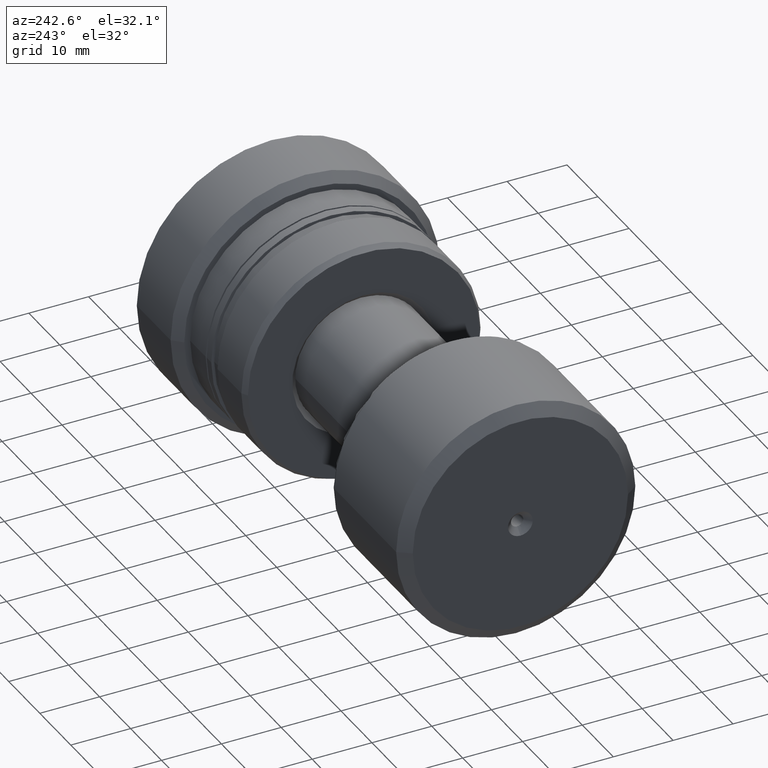
[diagram: clean part render]
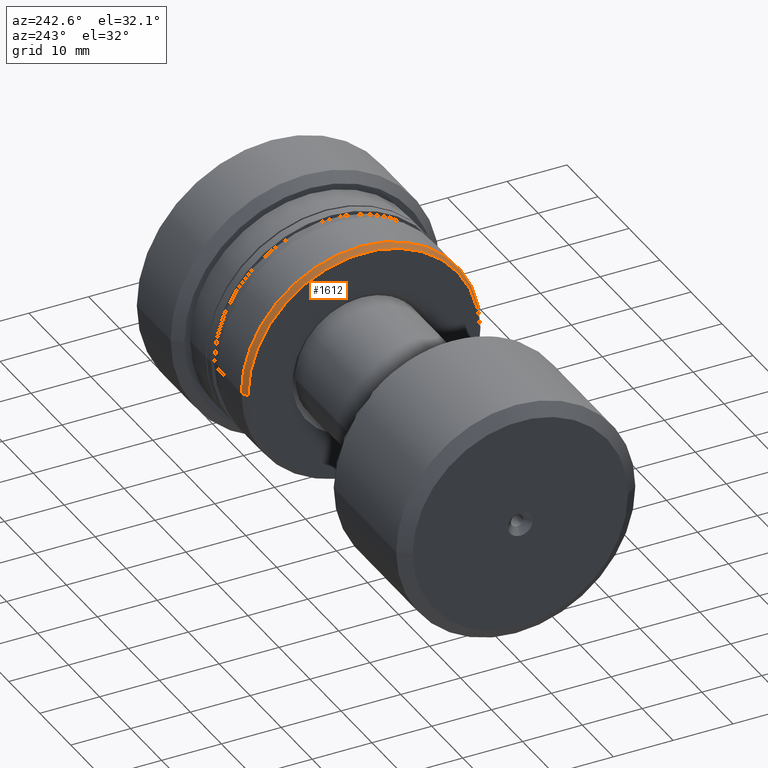
[diagram: same view with one face highlighted and labeled with its STEP entity id]
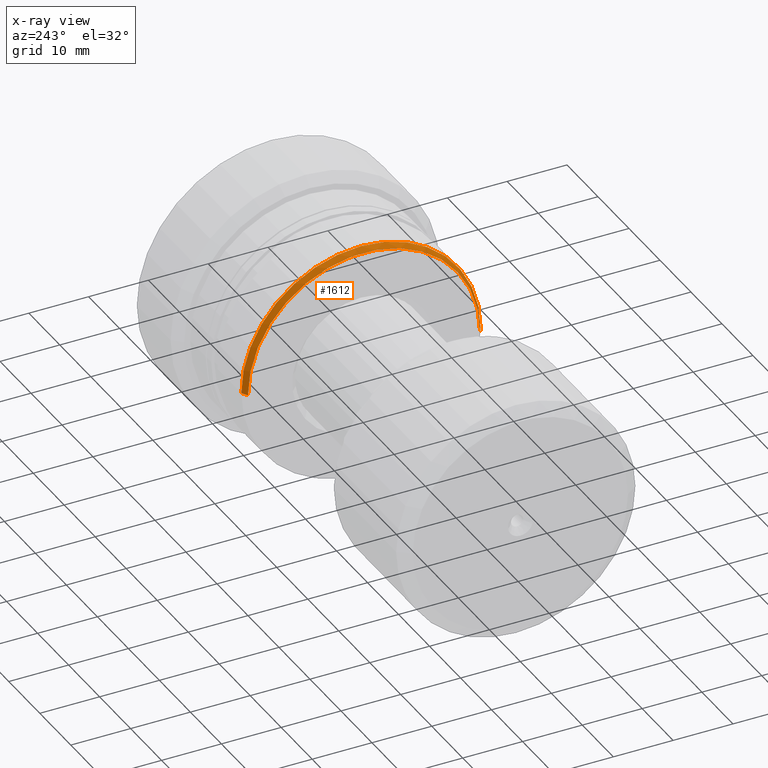
[diagram: x-ray of the same camera — body ghosted, the highlighted face saturated]
A machine part, auxiliary view. The second image highlights one B-rep face of the part: STEP entity #1612.
The next image is the same camera in x-ray: the body ghosted, the highlighted face saturated — about 0% of this face is hidden behind the body in this view.
In plain terms, the highlighted conical surface has half-angle 30 deg.
Its self-contained STEP definition (entity closure, byte-faithful):
#1 = CONICAL_SURFACE ( 'NONE', #1965, 19.42264973081046975, 0.5235987755983095848 ) ;
#38 = CARTESIAN_POINT ( 'NONE',  ( -31.49999999999999289, -19.42264973081047330, 2.413941090337215294E-15 ) ) ;
#108 = AXIS2_PLACEMENT_3D ( 'NONE', #1478, #2413, #2240 ) ;
#143 = CARTESIAN_POINT ( 'NONE',  ( -31.50000000000011724, 19.42264973081046620, 0.000000000000000000 ) ) ;
#190 = EDGE_CURVE ( 'NONE', #254, #1308, #1847, .T. ) ;
#245 = CARTESIAN_POINT ( 'NONE',  ( -31.50000000000011724, 19.42264973081046620, 0.000000000000000000 ) ) ;
#254 = VERTEX_POINT ( 'NONE', #38 ) ;
#325 = AXIS2_PLACEMENT_3D ( 'NONE', #2273, #2130, #1006 ) ;
#428 = FACE_OUTER_BOUND ( 'NONE', #1591, .T. ) ;
#433 = CIRCLE ( 'NONE', #108, 19.42264973081046975 ) ;
#455 = DIRECTION ( 'NONE',  ( 0.8660254037844348218, -0.5000000000000066613, 6.123233995736880667E-17 ) ) ;
#613 = DIRECTION ( 'NONE',  ( 1.000000000000000000, 3.039592211588219332E-15, -0.000000000000000000 ) ) ;
#794 = LINE ( 'NONE', #245, #2042 ) ;
#824 = EDGE_CURVE ( 'NONE', #980, #254, #433, .T. ) ;
#980 = VERTEX_POINT ( 'NONE', #143 ) ;
#1006 = DIRECTION ( 'NONE',  ( -3.122502256758252376E-15, 1.000000000000000000, 0.000000000000000000 ) ) ;
#1052 = EDGE_CURVE ( 'NONE', #1600, #1308, #1415, .T. ) ;
#1182 = ORIENTED_EDGE ( 'NONE', *, *, #1052, .F. ) ;
#1185 = CARTESIAN_POINT ( 'NONE',  ( -31.50000000000005684, -3.708233295962832451E-15, 0.000000000000000000 ) ) ;
#1207 = ORIENTED_EDGE ( 'NONE', *, *, #1496, .F. ) ;
#1221 = VECTOR ( 'NONE', #455, 1000.000000000000000 ) ;
#1308 = VERTEX_POINT ( 'NONE', #1976 ) ;
#1415 = CIRCLE ( 'NONE', #325, 20.00000000000000355 ) ;
#1478 = CARTESIAN_POINT ( 'NONE',  ( -31.50000000000005684, -3.708233295962832451E-15, 0.000000000000000000 ) ) ;
#1496 = EDGE_CURVE ( 'NONE', #980, #1600, #794, .T. ) ;
#1546 = DIRECTION ( 'NONE',  ( 0.8660254037844317132, 0.5000000000000121014, 0.000000000000000000 ) ) ;
#1591 = EDGE_LOOP ( 'NONE', ( #1818, #2358, #1182, #1207 ) ) ;
#1600 = VERTEX_POINT ( 'NONE', #1712 ) ;
#1612 = ADVANCED_FACE ( 'NONE', ( #428 ), #1, .T. ) ;
#1712 = CARTESIAN_POINT ( 'NONE',  ( -30.50000000000030553, 20.00000000000000355, 0.000000000000000000 ) ) ;
#1818 = ORIENTED_EDGE ( 'NONE', *, *, #824, .T. ) ;
#1847 = LINE ( 'NONE', #2041, #1221 ) ;
#1965 = AXIS2_PLACEMENT_3D ( 'NONE', #1185, #613, #2063 ) ;
#1976 = CARTESIAN_POINT ( 'NONE',  ( -30.50000000000018119, -20.00000000000000355, 2.449293598294706513E-15 ) ) ;
#2041 = CARTESIAN_POINT ( 'NONE',  ( -31.49999999999999289, -19.42264973081047330, 2.378588582379724469E-15 ) ) ;
#2042 = VECTOR ( 'NONE', #1546, 999.9999999999998863 ) ;
#2063 = DIRECTION ( 'NONE',  ( -3.215320566487873166E-15, 1.000000000000000000, 0.000000000000000000 ) ) ;
#2130 = DIRECTION ( 'NONE',  ( 1.000000000000000000, 3.039592211588219332E-15, -0.000000000000000000 ) ) ;
#2240 = DIRECTION ( 'NONE',  ( -3.215320566487873166E-15, 1.000000000000000000, 0.000000000000000000 ) ) ;
#2273 = CARTESIAN_POINT ( 'NONE',  ( -30.50000000000024158, -6.686410843751637443E-16, 0.000000000000000000 ) ) ;
#2358 = ORIENTED_EDGE ( 'NONE', *, *, #190, .T. ) ;
#2413 = DIRECTION ( 'NONE',  ( 1.000000000000000000, 3.039592211588219332E-15, -0.000000000000000000 ) ) ;